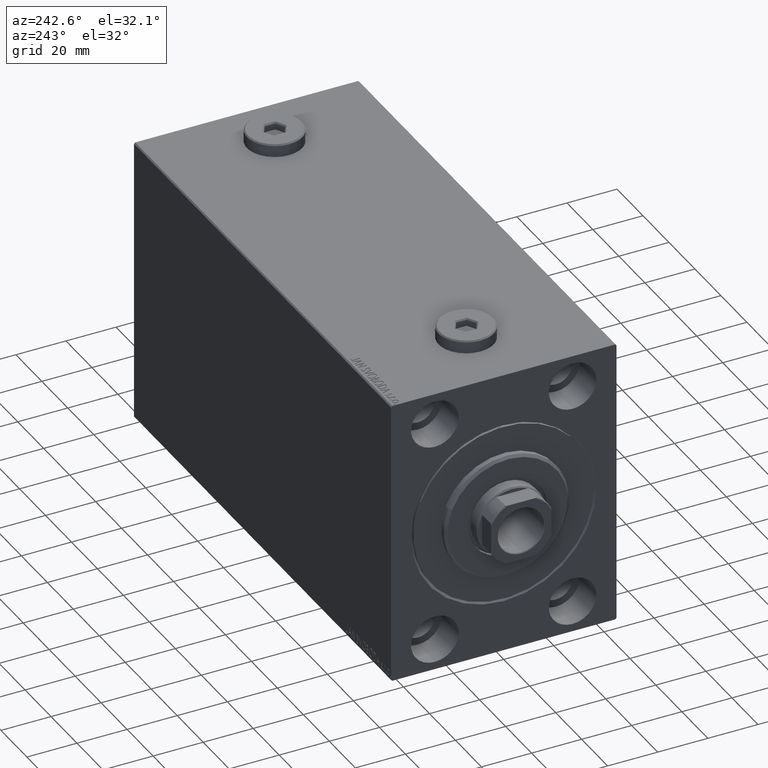
[diagram: clean part render]
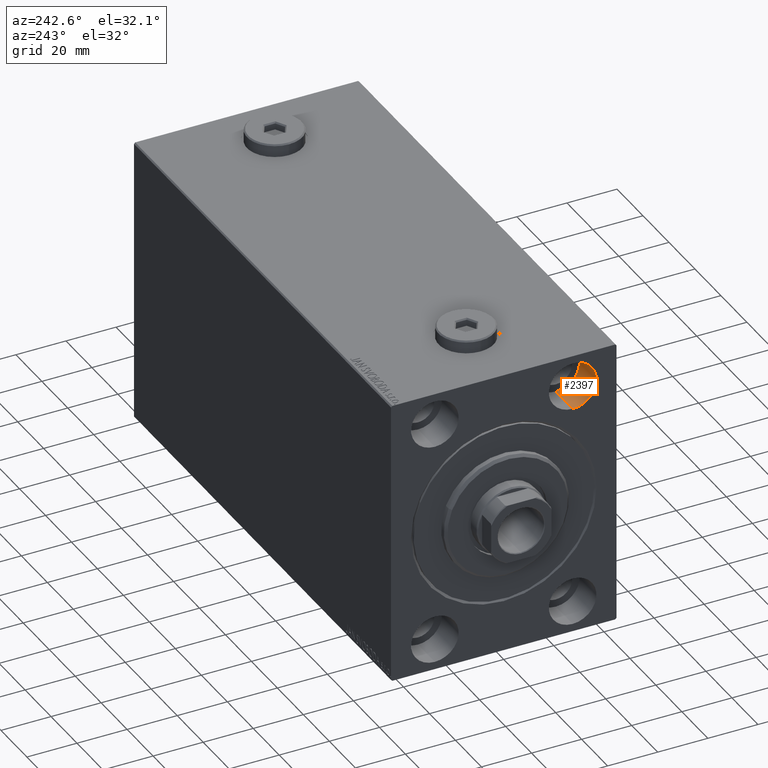
[diagram: same view with one face highlighted and labeled with its STEP entity id]
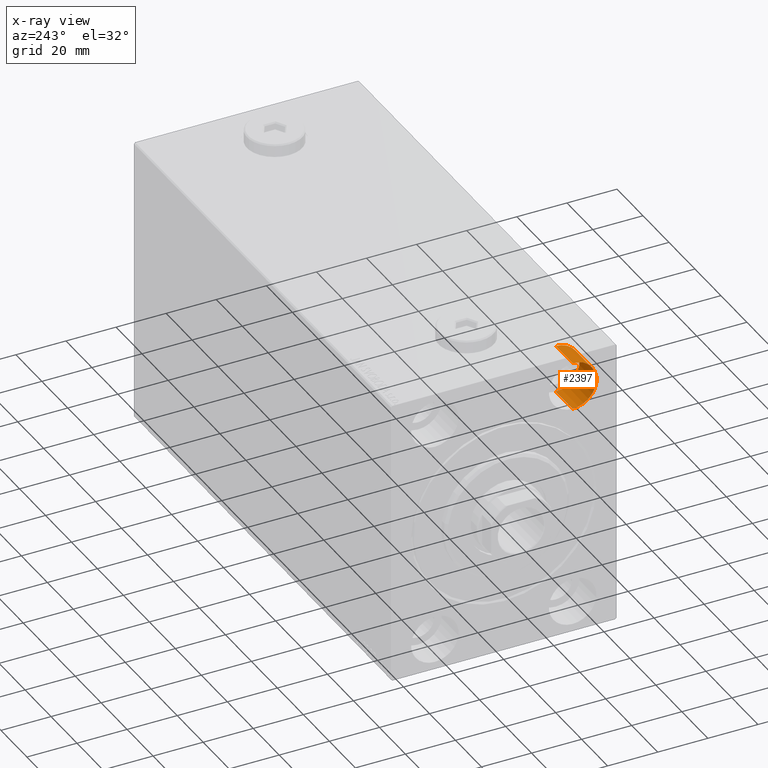
[diagram: x-ray of the same camera — body ghosted, the highlighted face saturated]
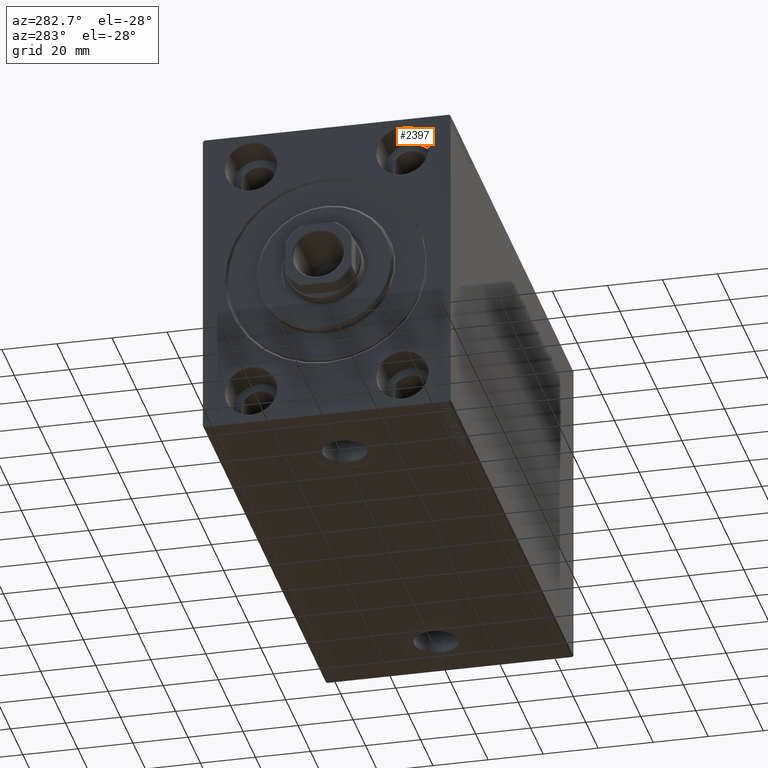
[diagram: same view with one face highlighted and labeled with its STEP entity id]
A machine part, auxiliary view. The second image highlights one B-rep face of the part: STEP entity #2397.
The next image is the same camera in x-ray: the body ghosted, the highlighted face saturated — about 0% of this face is hidden behind the body in this view.
A second angle (auxiliary view) of the same face is appended — the face is thin or edge-on in the first view.
In plain terms, the highlighted cylindrical surface (edge-blend (fillet) strip) has radius 9.5 mm, axis along (-1, -0, -0).
Its self-contained STEP definition (entity closure, byte-faithful):
#545 = CARTESIAN_POINT ( 'NONE',  ( 13.00000000000000000, -27.49999999999998934, 54.50000000000000711 ) ) ;
#802 = CARTESIAN_POINT ( 'NONE',  ( 0.000000000000000000, -27.49999999999998934, 54.50000000000000711 ) ) ;
#875 = EDGE_CURVE ( 'NONE', #16537, #43256, #33811, .T. ) ;
#2336 = CARTESIAN_POINT ( 'NONE',  ( 0.000000000000000000, -27.49999999999998934, 45.00000000000000711 ) ) ;
#2397 = ADVANCED_FACE ( 'NONE', ( #32688 ), #42551, .F. ) ;
#2701 = ORIENTED_EDGE ( 'NONE', *, *, #12463, .F. ) ;
#3845 = AXIS2_PLACEMENT_3D ( 'NONE', #32232, #42320, #11617 ) ;
#4206 = DIRECTION ( 'NONE',  ( -1.000000000000000000, -0.000000000000000000, -0.000000000000000000 ) ) ;
#6042 = ORIENTED_EDGE ( 'NONE', *, *, #20741, .T. ) ;
#8006 = DIRECTION ( 'NONE',  ( -1.000000000000000000, -0.000000000000000000, -0.000000000000000000 ) ) ;
#10286 = CARTESIAN_POINT ( 'NONE',  ( 13.00000000000000000, -27.49999999999998934, 35.50000000000000711 ) ) ;
#11617 = DIRECTION ( 'NONE',  ( 0.000000000000000000, 0.000000000000000000, 1.000000000000000000 ) ) ;
#12435 = DIRECTION ( 'NONE',  ( 0.000000000000000000, 0.000000000000000000, 1.000000000000000000 ) ) ;
#12463 = EDGE_CURVE ( 'NONE', #13229, #43256, #31932, .T. ) ;
#13229 = VERTEX_POINT ( 'NONE', #24440 ) ;
#13239 = ORIENTED_EDGE ( 'NONE', *, *, #23588, .F. ) ;
#14055 = AXIS2_PLACEMENT_3D ( 'NONE', #2336, #23207, #12435 ) ;
#14884 = VERTEX_POINT ( 'NONE', #10286 ) ;
#16537 = VERTEX_POINT ( 'NONE', #31764 ) ;
#16645 = AXIS2_PLACEMENT_3D ( 'NONE', #38200, #31761, #24435 ) ;
#19497 = VECTOR ( 'NONE', #4206, 1000.000000000000000 ) ;
#20741 = EDGE_CURVE ( 'NONE', #14884, #16537, #22001, .T. ) ;
#22001 = LINE ( 'NONE', #33192, #40018 ) ;
#23207 = DIRECTION ( 'NONE',  ( -1.000000000000000000, 0.000000000000000000, 0.000000000000000000 ) ) ;
#23588 = EDGE_CURVE ( 'NONE', #14884, #13229, #29737, .T. ) ;
#24435 = DIRECTION ( 'NONE',  ( 0.000000000000000000, 0.000000000000000000, 1.000000000000000000 ) ) ;
#24440 = CARTESIAN_POINT ( 'NONE',  ( 13.00000000000000000, -27.49999999999998934, 54.50000000000000711 ) ) ;
#25062 = EDGE_LOOP ( 'NONE', ( #13239, #6042, #25144, #2701 ) ) ;
#25144 = ORIENTED_EDGE ( 'NONE', *, *, #875, .T. ) ;
#29737 = CIRCLE ( 'NONE', #16645, 9.500000000000001776 ) ;
#31761 = DIRECTION ( 'NONE',  ( -1.000000000000000000, 0.000000000000000000, 0.000000000000000000 ) ) ;
#31764 = CARTESIAN_POINT ( 'NONE',  ( 0.000000000000000000, -27.49999999999998934, 35.50000000000000711 ) ) ;
#31932 = LINE ( 'NONE', #545, #19497 ) ;
#32232 = CARTESIAN_POINT ( 'NONE',  ( 13.00000000000000000, -27.49999999999998934, 45.00000000000000711 ) ) ;
#32688 = FACE_OUTER_BOUND ( 'NONE', #25062, .T. ) ;
#33192 = CARTESIAN_POINT ( 'NONE',  ( 13.00000000000000000, -27.49999999999998934, 35.50000000000000711 ) ) ;
#33811 = CIRCLE ( 'NONE', #14055, 9.500000000000001776 ) ;
#38200 = CARTESIAN_POINT ( 'NONE',  ( 13.00000000000000000, -27.49999999999998934, 45.00000000000000711 ) ) ;
#40018 = VECTOR ( 'NONE', #8006, 1000.000000000000000 ) ;
#42320 = DIRECTION ( 'NONE',  ( -1.000000000000000000, -0.000000000000000000, -0.000000000000000000 ) ) ;
#42551 = CYLINDRICAL_SURFACE ( 'NONE', #3845, 9.500000000000001776 ) ;
#43256 = VERTEX_POINT ( 'NONE', #802 ) ;